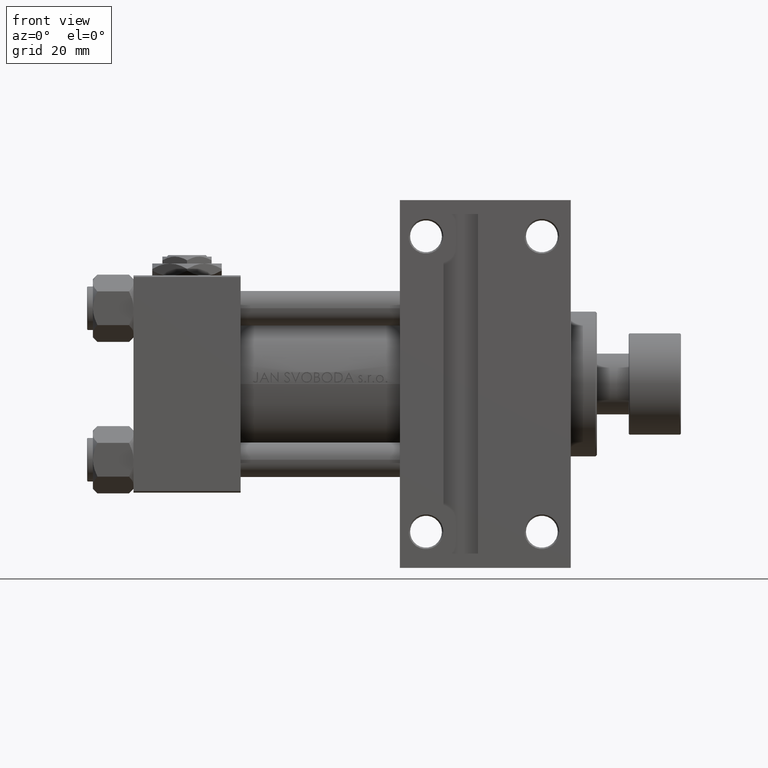
[diagram: clean part render]
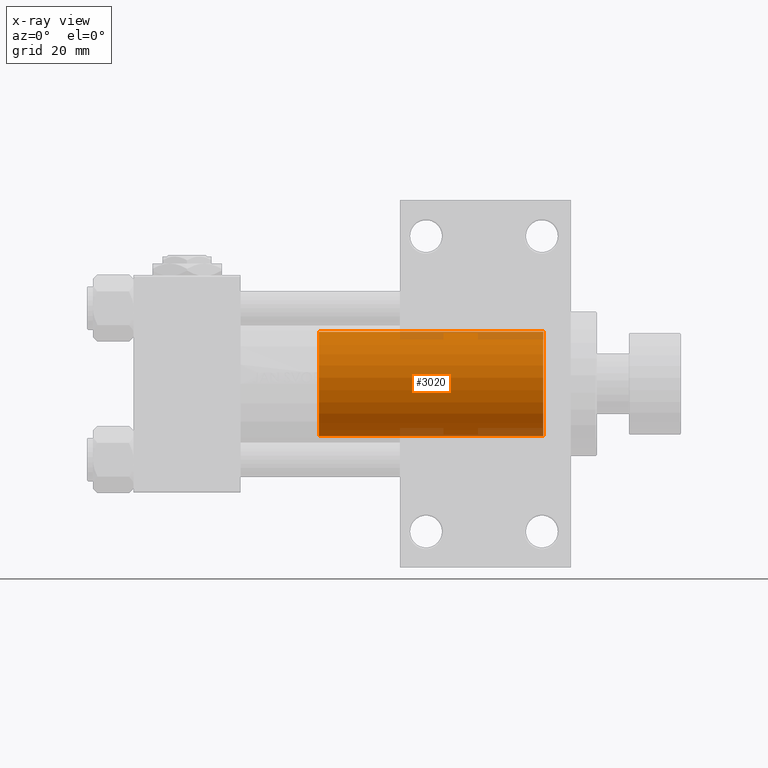
[diagram: x-ray — body ghosted, one internal face saturated and labeled with its STEP entity id]
A machine part, front view, then the same camera in x-ray: the body is ghosted and one INTERNAL B-rep face — a face not visible from any outside direction — is saturated and labeled: STEP entity #3020.
In plain terms, the highlighted cylindrical surface (partial cylindrical patch) has radius 18 mm, axis along (-1, 0, 0).
Its self-contained STEP definition (entity closure, byte-faithful):
#317 = VECTOR ( 'NONE', #25223, 1000.000000000000000 ) ;
#849 = ORIENTED_EDGE ( 'NONE', *, *, #23094, .T. ) ;
#2900 = EDGE_CURVE ( 'NONE', #10512, #20787, #39222, .T. ) ;
#3020 = ADVANCED_FACE ( 'NONE', ( #28087 ), #16426, .T. ) ;
#3245 = CARTESIAN_POINT ( 'NONE',  ( 18.00000000000000000, 2.204364238465235428E-15, 104.4999999999999858 ) ) ;
#4821 = DIRECTION ( 'NONE',  ( 0.000000000000000000, 0.000000000000000000, -1.000000000000000000 ) ) ;
#5020 = DIRECTION ( 'NONE',  ( -1.000000000000000000, 0.000000000000000000, 0.000000000000000000 ) ) ;
#6206 = CARTESIAN_POINT ( 'NONE',  ( -18.00000000000000000, 0.000000000000000000, 105.0000000000000000 ) ) ;
#8082 = DIRECTION ( 'NONE',  ( -0.000000000000000000, -0.000000000000000000, -1.000000000000000000 ) ) ;
#8473 = ORIENTED_EDGE ( 'NONE', *, *, #43627, .F. ) ;
#8681 = CARTESIAN_POINT ( 'NONE',  ( 18.00000000000000000, 2.204364238465235428E-15, 105.0000000000000000 ) ) ;
#9273 = EDGE_CURVE ( 'NONE', #39710, #46311, #46639, .T. ) ;
#10237 = VECTOR ( 'NONE', #28174, 1000.000000000000000 ) ;
#10512 = VERTEX_POINT ( 'NONE', #22461 ) ;
#12460 = LINE ( 'NONE', #8681, #10237 ) ;
#13937 = CARTESIAN_POINT ( 'NONE',  ( -18.00000000000000000, 0.000000000000000000, 104.4999999999999858 ) ) ;
#15997 = EDGE_LOOP ( 'NONE', ( #47141, #849, #20612, #8473 ) ) ;
#16426 = CYLINDRICAL_SURFACE ( 'NONE', #30301, 18.00000000000000000 ) ;
#18473 = DIRECTION ( 'NONE',  ( 1.000000000000000000, 0.000000000000000000, 0.000000000000000000 ) ) ;
#20612 = ORIENTED_EDGE ( 'NONE', *, *, #2900, .T. ) ;
#20787 = VERTEX_POINT ( 'NONE', #38706 ) ;
#22461 = CARTESIAN_POINT ( 'NONE',  ( 18.00000000000000000, 2.204364238465235428E-15, 27.00000000000000000 ) ) ;
#22532 = CARTESIAN_POINT ( 'NONE',  ( 0.000000000000000000, 0.000000000000000000, 27.00000000000000000 ) ) ;
#23094 = EDGE_CURVE ( 'NONE', #46311, #10512, #12460, .T. ) ;
#25223 = DIRECTION ( 'NONE',  ( -0.000000000000000000, -0.000000000000000000, -1.000000000000000000 ) ) ;
#28087 = FACE_OUTER_BOUND ( 'NONE', #15997, .T. ) ;
#28174 = DIRECTION ( 'NONE',  ( -0.000000000000000000, -0.000000000000000000, -1.000000000000000000 ) ) ;
#30301 = AXIS2_PLACEMENT_3D ( 'NONE', #31641, #8082, #5020 ) ;
#31641 = CARTESIAN_POINT ( 'NONE',  ( 0.000000000000000000, 0.000000000000000000, 105.0000000000000000 ) ) ;
#35991 = CARTESIAN_POINT ( 'NONE',  ( 0.000000000000000000, 0.000000000000000000, 104.4999999999999858 ) ) ;
#36128 = LINE ( 'NONE', #6206, #317 ) ;
#37750 = DIRECTION ( 'NONE',  ( 0.000000000000000000, 0.000000000000000000, 1.000000000000000000 ) ) ;
#38706 = CARTESIAN_POINT ( 'NONE',  ( -18.00000000000000000, 0.000000000000000000, 27.00000000000000000 ) ) ;
#39222 = CIRCLE ( 'NONE', #48989, 18.00000000000000000 ) ;
#39710 = VERTEX_POINT ( 'NONE', #13937 ) ;
#43375 = AXIS2_PLACEMENT_3D ( 'NONE', #35991, #4821, #47921 ) ;
#43627 = EDGE_CURVE ( 'NONE', #39710, #20787, #36128, .T. ) ;
#46311 = VERTEX_POINT ( 'NONE', #3245 ) ;
#46639 = CIRCLE ( 'NONE', #43375, 18.00000000000000000 ) ;
#47141 = ORIENTED_EDGE ( 'NONE', *, *, #9273, .T. ) ;
#47921 = DIRECTION ( 'NONE',  ( 1.000000000000000000, 0.000000000000000000, 0.000000000000000000 ) ) ;
#48989 = AXIS2_PLACEMENT_3D ( 'NONE', #22532, #37750, #18473 ) ;